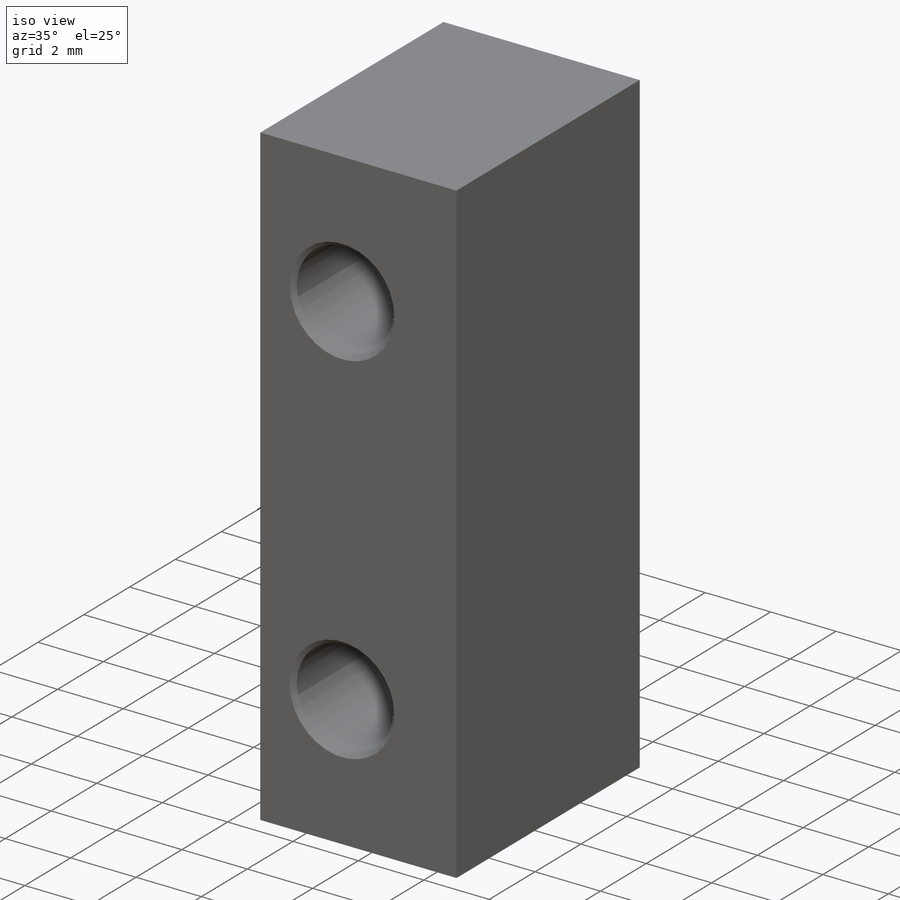
[diagram: iso view]
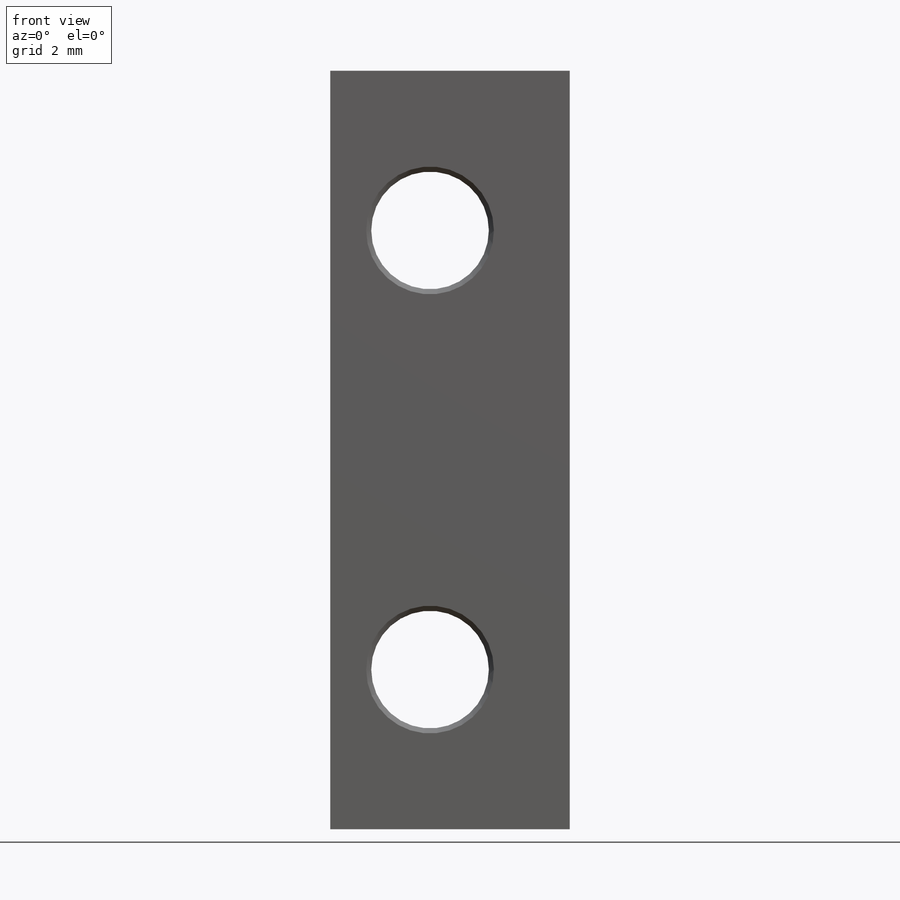
[diagram: front view]
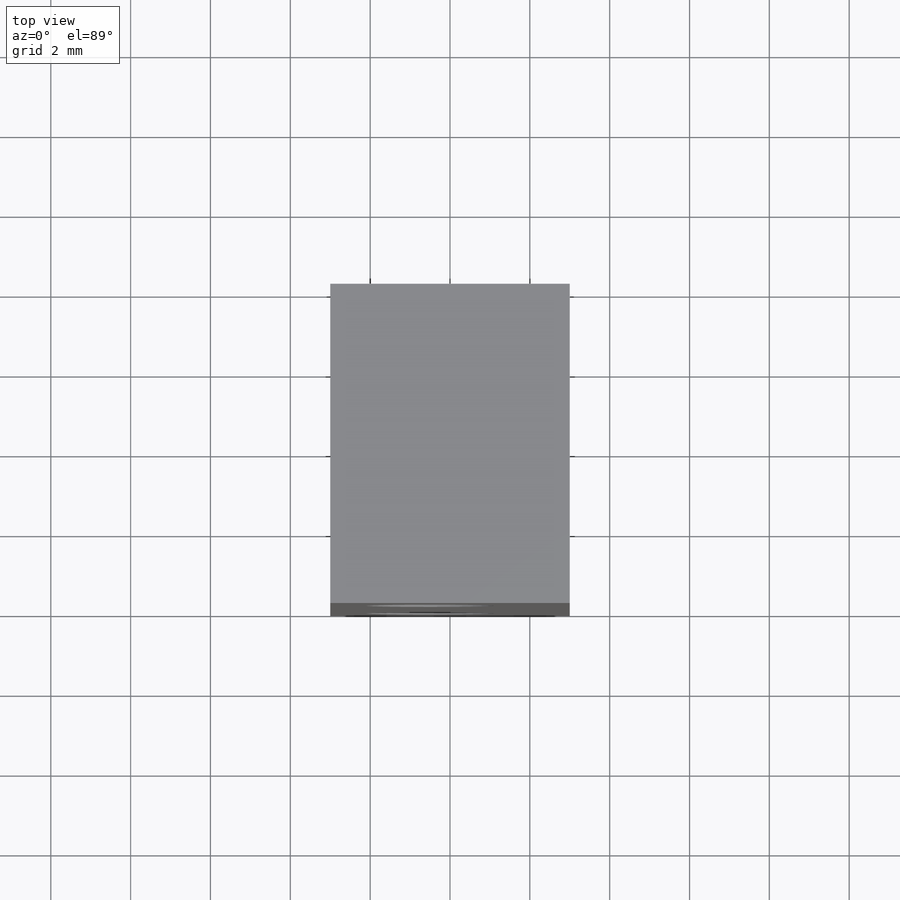
[diagram: top view]
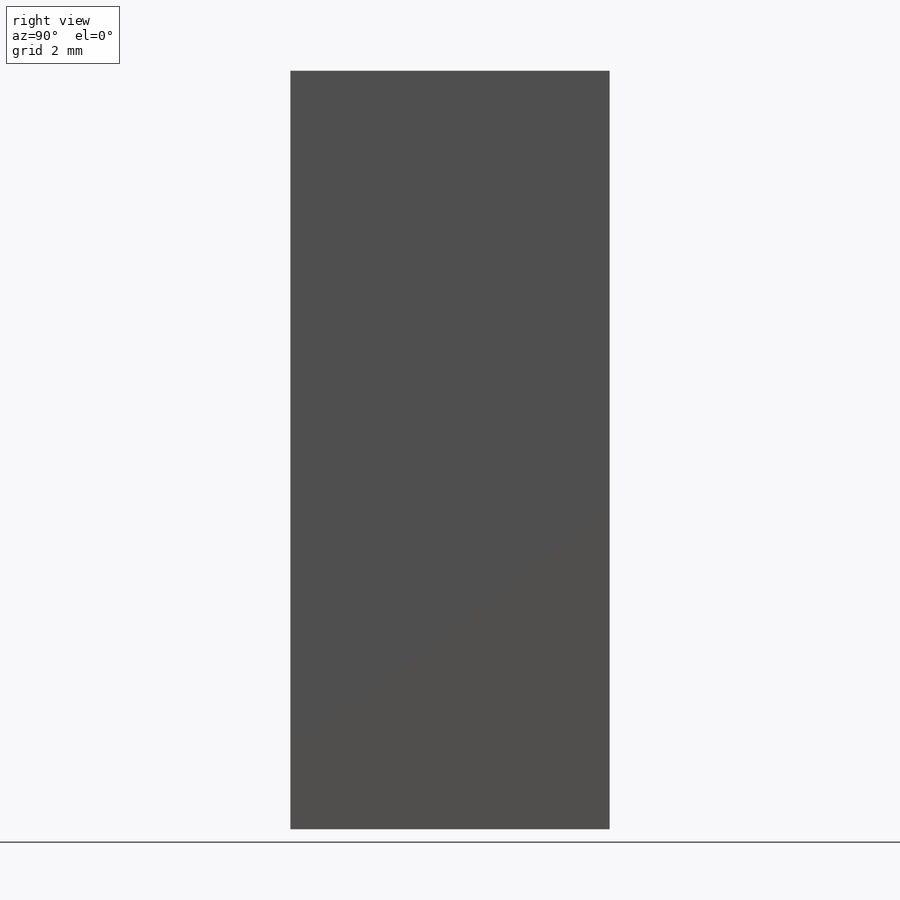
[diagram: right view]
SOLIDWORKS PART (.sldprt)
format: sldprt  version: not decoded by parser v0  size: 409,088 bytes
history: native  units: mm
features: sketch x3, material x1, extrude x1, hole x1, chamfer x1 (+14 scaffold rows collapsed)
feature tree (21):
  scaffold x14  (default folders/planes/origin — collapsed)
  material  "2024-T4"
  sketch  "Эскиз1"  dims[D1=6.0mm D2=19.0mm]
  extrude  "Бобышка-Вытянуть1"  Depth=8mm
  hole  "Цековка для  винта с внутренним шестигранником #41"  [1 undecoded]
  sketch  "Эскиз3"  dims[D1=11.0mm D2=3.5mm D3=4.0mm]
  sketch  "Эскиз2"  dims[hole-wizard template sketch: 28 standard entries collapsed; hole parameters kept: c8.Диаметр сквозного отверстия=2.9464mm c8.Глубина сквозного отверстия=8.0mm c8.Диаметр цековки=~5.55752mm c8.Глубина цековки=2.8448mm c8.Диаметр передней зенковки=~5.81152mm c8.D6=~4.444873mm c8.Угол передней зенковки=90.0deg c8.Диаметр средней зенковки=3.2004mm c8.D8=~4.444873mm c8.Угол средней зенковки=90.0deg c8.Диаметр задней зенковки=3.2004mm c8.D10=~8.980256mm c8.Угол задней зенковки=90.0deg]
  chamfer  "Фаска1"  Distance=0.5mm Angle=64deg
decode coverage: 5 of 6 modeling features carry decoded parameters
note: ~ marks probable driven/reference dimensions
note: 1 parameter value undecoded
note: suppression state not decoded; provenance and decode notes live in map.json
